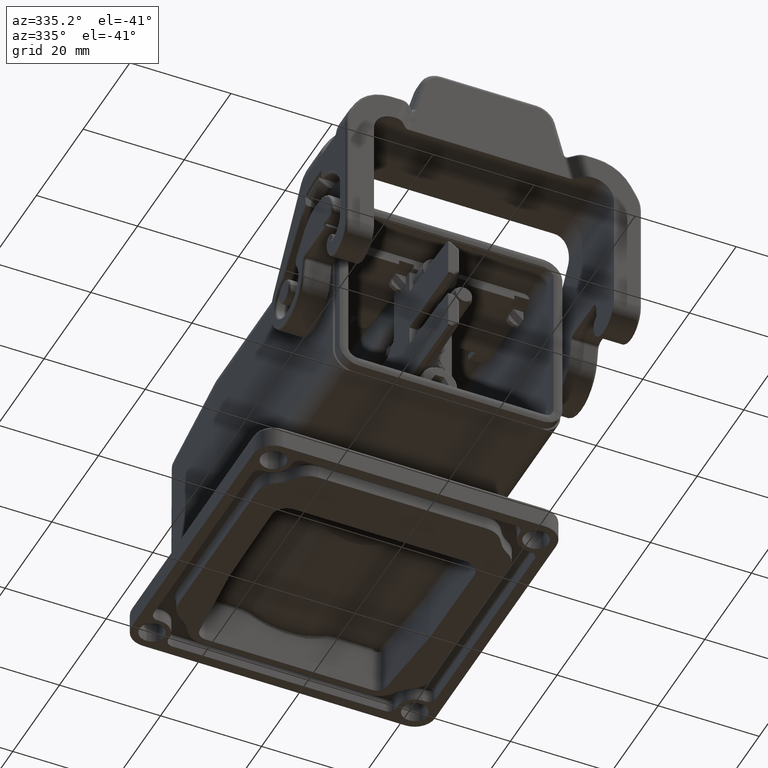
[diagram: clean part render]
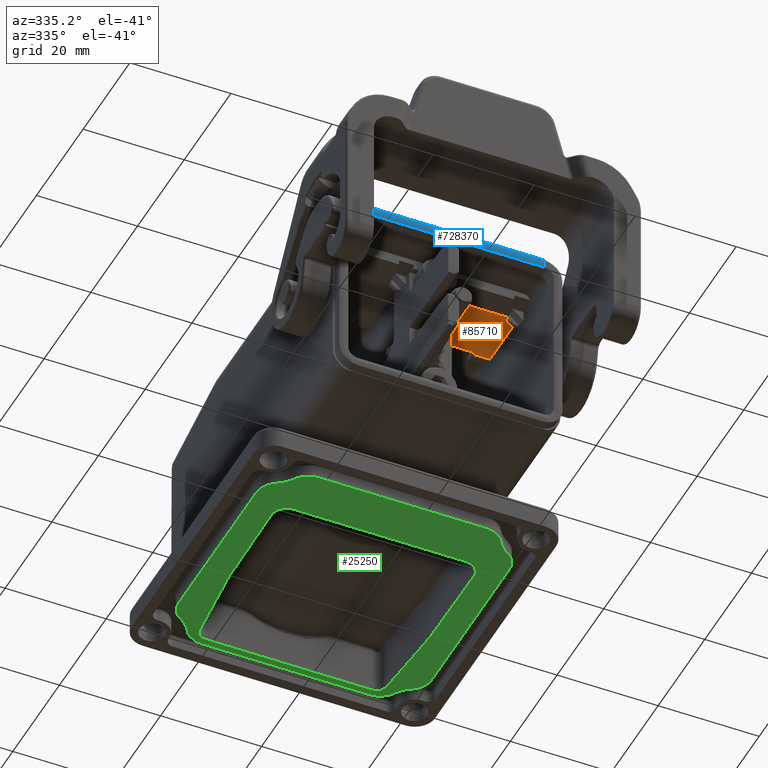
[diagram: same view with three faces highlighted in distinct colors, each labeled with its STEP entity id]
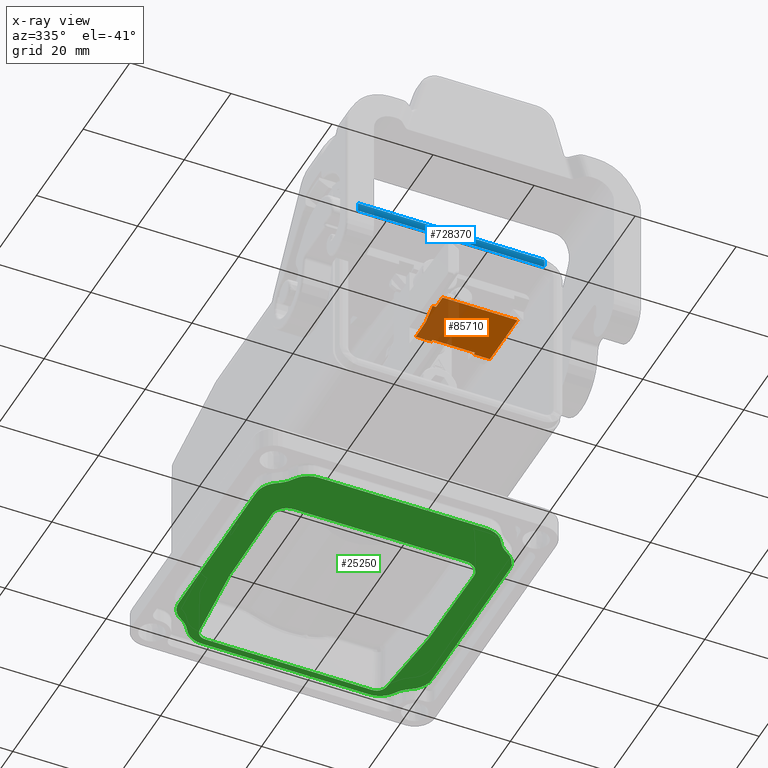
[diagram: x-ray of the same camera — body ghosted, the three highlighted faces saturated]
A machine part, auxiliary view with three faces highlighted in distinct colors.
The next image is the same camera in x-ray (body ghosted, the three faces saturated) — at least one of them is partly hidden behind the body in this view.
Their STEP definitions:

[orange] entity #85710 — the highlighted planar face has unit normal (0, 0.0058, -1).
#81020=CARTESIAN_POINT('',(93.1316055413798,59.4642975413741,
101.46658071361));
#81030=VERTEX_POINT('',#81020);
#82290=CARTESIAN_POINT('',(93.1316055413772,60.1392975413746,
101.46658071361));
#82300=VERTEX_POINT('',#82290);
#82330=CARTESIAN_POINT('',(93.1316055413772,18.9013455413746,
101.46658071361));
#82340=DIRECTION('',(5.55111512312578E-17,-1.,3.08148791101951E-33));
#82350=VECTOR('',#82340,1.);
#82360=LINE('',#82330,#82350);
#82370=EDGE_CURVE('',#82300,#81030,#82360,.T.);
#84640=CARTESIAN_POINT('',(84.1315632336062,63.3892975413746,
101.518941375686));
#84650=VERTEX_POINT('',#84640);
#84680=CARTESIAN_POINT('',(57.5744225413772,63.3892975413746,
101.673446145991));
#84690=DIRECTION('',(0.99998307689159,5.55102118100275E-17,
-0.00581772553732686));
#84700=VECTOR('',#84690,1.);
#84710=LINE('',#84680,#84700);
#84720=CARTESIAN_POINT('',(84.6316055413772,63.3892975413746,
101.516032217551));
#84730=VERTEX_POINT('',#84720);
#84740=EDGE_CURVE('',#84650,#84730,#84710,.T.);
#84940=CARTESIAN_POINT('',(95.9816055413771,18.9013455413746,
101.44999991523));
#84950=DIRECTION('',(-0.00581772553732686,-3.22948642124505E-19,
-0.99998307689159));
#84960=DIRECTION('',(0.99998307689159,5.55102118100275E-17,
-0.00581772553732686));
#84970=AXIS2_PLACEMENT_3D('',#84940,#84950,#84960);
#84980=PLANE('',#84970);
#84990=CARTESIAN_POINT('',(57.5744225413772,65.4185279293042,
101.673446145991));
#85000=DIRECTION('',(-0.986251305539335,0.165152776404633,
0.0057378365084874));
#85010=VECTOR('',#85000,1.);
#85020=LINE('',#84990,#85010);
#85030=CARTESIAN_POINT('',(88.6316055413772,60.2178453335516,
101.492760921579));
#85040=VERTEX_POINT('',#85030);
#85050=EDGE_CURVE('',#81030,#85040,#85020,.T.);
#85060=ORIENTED_EDGE('',*,*,#85050,.T.);
#85070=ORIENTED_EDGE('',*,*,#82370,.T.);
#85080=CARTESIAN_POINT('',(57.5744225413772,60.1392975413746,
101.673446145991));
#85090=DIRECTION('',(0.99998307689159,5.55102118100275E-17,
-0.00581772553732686));
#85100=VECTOR('',#85090,1.);
#85110=LINE('',#85080,#85100);
#85120=CARTESIAN_POINT('',(95.9816055413771,60.1392975413746,
101.44999991523));
#85130=VERTEX_POINT('',#85120);
#85140=EDGE_CURVE('',#82300,#85130,#85110,.T.);
#85150=ORIENTED_EDGE('',*,*,#85140,.F.);
#85160=CARTESIAN_POINT('',(95.9816055413771,18.9013455413746,
101.44999991523));
#85170=DIRECTION('',(-5.55111512312578E-17,1.,-3.08148791101951E-33));
#85180=VECTOR('',#85170,1.);
#85190=LINE('',#85160,#85180);
#85200=CARTESIAN_POINT('',(95.9816055413771,74.9642975413746,
101.44999991523));
#85210=VERTEX_POINT('',#85200);
#85220=EDGE_CURVE('',#85130,#85210,#85190,.T.);
#85230=ORIENTED_EDGE('',*,*,#85220,.F.);
#85240=CARTESIAN_POINT('',(57.5744225413772,74.9642975413746,
101.673446145991));
#85250=DIRECTION('',(0.99998307689159,5.55102118100275E-17,
-0.00581772553732686));
#85260=VECTOR('',#85250,1.);
#85270=LINE('',#85240,#85260);
#85280=CARTESIAN_POINT('',(84.1315632336062,74.9642975413746,
101.518941375686));
#85290=VERTEX_POINT('',#85280);
#85300=EDGE_CURVE('',#85290,#85210,#85270,.T.);
#85310=ORIENTED_EDGE('',*,*,#85300,.T.);
#85320=CARTESIAN_POINT('',(84.1315632336061,73.3767975413746,
101.518941375686));
#85330=DIRECTION('',(5.55111512312578E-17,-1.,3.08148791101951E-33));
#85340=VECTOR('',#85330,1.);
#85350=LINE('',#85320,#85340);
#85360=CARTESIAN_POINT('',(84.1315632336062,71.7892975413746,
101.518941375686));
#85370=VERTEX_POINT('',#85360);
#85380=EDGE_CURVE('',#85290,#85370,#85350,.T.);
#85390=ORIENTED_EDGE('',*,*,#85380,.F.);
#85400=CARTESIAN_POINT('',(57.5744225413772,71.7892975413746,
101.673446145991));
#85410=DIRECTION('',(0.99998307689159,5.55102118100275E-17,
-0.00581772553732686));
#85420=VECTOR('',#85410,1.);
#85430=LINE('',#85400,#85420);
#85440=CARTESIAN_POINT('',(84.6316055413772,71.7892975413746,
101.516032217551));
#85450=VERTEX_POINT('',#85440);
#85460=EDGE_CURVE('',#85370,#85450,#85430,.T.);
#85470=ORIENTED_EDGE('',*,*,#85460,.F.);
#85480=CARTESIAN_POINT('',(84.6316055413772,18.9013455413746,
101.516032217551));
#85490=DIRECTION('',(5.55111512312578E-17,-1.,3.08148791101951E-33));
#85500=VECTOR('',#85490,1.);
#85510=LINE('',#85480,#85500);
#85520=EDGE_CURVE('',#85450,#84730,#85510,.T.);
#85530=ORIENTED_EDGE('',*,*,#85520,.F.);
#85540=ORIENTED_EDGE('',*,*,#84740,.T.);
#85550=CARTESIAN_POINT('',(84.1315632336062,18.9013455413746,
101.518941375686));
#85560=DIRECTION('',(-5.55111512312578E-17,1.,-3.08148791101951E-33));
#85570=VECTOR('',#85560,1.);
#85580=LINE('',#85550,#85570);
#85590=CARTESIAN_POINT('',(84.1315632336062,60.2963938642134,
101.518941375686));
#85600=VERTEX_POINT('',#85590);
#85610=EDGE_CURVE('',#85600,#84650,#85580,.T.);
#85620=ORIENTED_EDGE('',*,*,#85610,.T.);
#85630=CARTESIAN_POINT('',(57.5744225413772,60.7599504793041,
101.673446145991));
#85640=DIRECTION('',(-0.999830779779087,0.0174521111782743,
0.00581683949953167));
#85650=VECTOR('',#85640,1.);
#85660=LINE('',#85630,#85650);
#85670=EDGE_CURVE('',#85040,#85600,#85660,.T.);
#85680=ORIENTED_EDGE('',*,*,#85670,.T.);
#85690=EDGE_LOOP('',(#85680,#85620,#85540,#85530,#85470,#85390,#85310,
#85230,#85150,#85070,#85060));
#85700=FACE_OUTER_BOUND('',#85690,.T.);
#85710=ADVANCED_FACE('',(#85700),#84980,.T.);

[blue] entity #728370 — the highlighted cylindrical surface (edge-blend (fillet) strip) has radius 3 mm, axis along (-1, -0, -0).
#719260=CARTESIAN_POINT('',(108.603494381111,37.519315490939,
103.932673941236));
#719270=VERTEX_POINT('',#719260);
#725630=CARTESIAN_POINT('',(106.731605541377,37.7549790595669,
101.799535940432));
#725640=DIRECTION('',(-0.999695459881888,-0.0174497491606827,
0.0174497491606826));
#725650=DIRECTION('',(0.0174524064372834,0.,0.999847695156391));
#725660=AXIS2_PLACEMENT_3D('',#725630,#725640,#725650);
#725670=CYLINDRICAL_SURFACE('',#725660,3.89987);
#727340=CARTESIAN_POINT('',(105.731605541377,55.9545149999983,104.8));
#727350=DIRECTION('',(-6.16297582203915E-33,-1.,-3.42113882891801E-49));
#727360=DIRECTION('',(5.55111512312578E-17,0.,-1.));
#727370=AXIS2_PLACEMENT_3D('',#727340,#727350,#727360);
#727380=CYLINDRICAL_SURFACE('',#727370,3.);
#727390=CARTESIAN_POINT('',(108.603494381111,55.9545149999983,
103.932673941236));
#727400=DIRECTION('',(-6.16297582203915E-33,-1.,-3.42113882891801E-49));
#727410=VECTOR('',#727400,1.);
#727420=LINE('',#727390,#727410);
#727430=CARTESIAN_POINT('',(108.603494381111,74.3874783204371,
103.932673941236));
#727440=VERTEX_POINT('',#727430);
#727450=CARTESIAN_POINT('',(108.603494381111,37.5215516795595,
103.932673941236));
#727460=VERTEX_POINT('',#727450);
#727470=EDGE_CURVE('',#727440,#727460,#727420,.T.);
#727480=ORIENTED_EDGE('',*,*,#727470,.F.);
#727490=CARTESIAN_POINT('',(108.603494381111,37.519315490939,
103.932673941236));
#727500=DIRECTION('',(1.1943240077442E-50,1.,-1.07575143124729E-34));
#727510=VECTOR('',#727500,1.);
#727520=LINE('',#727490,#727510);
#727530=EDGE_CURVE('',#719270,#727460,#727520,.T.);
#727540=ORIENTED_EDGE('',*,*,#727530,.T.);
#727550=CARTESIAN_POINT('',(105.731605541377,37.519315490939,104.8));
#727560=DIRECTION('',(6.20148791431082E-15,-1.,1.39417152399687E-15));
#727570=DIRECTION('',(-4.44089209850018E-16,-1.39417152399688E-15,-1.));
#727580=AXIS2_PLACEMENT_3D('',#727550,#727560,#727570);
#727590=CIRCLE('',#727580,3.);
#727600=CARTESIAN_POINT('',(108.606260140404,37.519315490939,
105.658114757067));
#727610=VERTEX_POINT('',#727600);
#727620=EDGE_CURVE('',#719270,#727610,#727590,.T.);
#727630=ORIENTED_EDGE('',*,*,#727620,.F.);
#727640=CARTESIAN_POINT('',(105.731605541377,37.519315490939,104.8));
#727650=DIRECTION('',(6.20148791431082E-15,-1.,1.39417152399687E-15));
#727660=DIRECTION('',(-4.44089209850018E-16,-1.39417152399688E-15,-1.));
#727670=AXIS2_PLACEMENT_3D('',#727640,#727650,#727660);
#727680=CYLINDRICAL_SURFACE('',#727670,3.);
#727690=CARTESIAN_POINT('',(108.606260140404,37.519315490939,
105.658114757067));
#727700=CARTESIAN_POINT('',(108.605803151,37.5414856977012,
105.65964565568));
#727710=CARTESIAN_POINT('',(108.605401427021,37.5636853441523,
105.660987021479));
#727720=CARTESIAN_POINT('',(108.605056153393,37.5859097557589,
105.66213779659));
#727730=CARTESIAN_POINT('',(108.604710879863,37.6081341610314,
105.663288571373));
#727740=CARTESIAN_POINT('',(108.604422057486,37.6303833243634,
105.664248754259));
#727750=CARTESIAN_POINT('',(108.604190582469,37.6526523817938,
105.66501744589));
#727760=CARTESIAN_POINT('',(108.603959107509,37.6749214337916,
105.665786137334));
#727770=CARTESIAN_POINT('',(108.603784980544,37.6972103725422,
105.66636333656));
#727780=CARTESIAN_POINT('',(108.603668798819,37.7195141737099,
105.666748317135));
#727790=CARTESIAN_POINT('',(108.603552617117,37.7418179703143,
105.667133297631));
#727800=CARTESIAN_POINT('',(108.603494381112,37.7641366218049,
105.667326058764));
#727810=CARTESIAN_POINT('',(108.603494381112,37.7864649721438,
105.667326058764));
#727820=B_SPLINE_CURVE_WITH_KNOTS('',3,(#727690,#727700,#727710,#727720,
#727730,#727740,#727750,#727760,#727770,#727780,#727790,#727800,#727810)
,.UNSPECIFIED.,.F.,.F.,(4,3,3,3,4),(0.,0.0667274294355022,
0.133538655234725,0.200425786045437,0.267380211048013),.UNSPECIFIED.);
#727830=SURFACE_CURVE('',#727820,(#725670,#727680),.CURVE_3D.);
#727840=CARTESIAN_POINT('',(108.603494381111,37.7864649721438,
105.667326058764));
#727850=VERTEX_POINT('',#727840);
#727860=EDGE_CURVE('',#727610,#727850,#727830,.T.);
#727870=ORIENTED_EDGE('',*,*,#727860,.F.);
#727880=CARTESIAN_POINT('',(108.603494381111,55.9545149999983,
105.667326058764));
#727890=DIRECTION('',(-6.16297582203915E-33,-1.,-3.42113882891801E-49));
#727900=VECTOR('',#727890,1.);
#727910=LINE('',#727880,#727900);
#727920=CARTESIAN_POINT('',(108.603494381112,74.1225650278528,
105.667326058764));
#727930=VERTEX_POINT('',#727920);
#727940=EDGE_CURVE('',#727930,#727850,#727910,.T.);
#727950=ORIENTED_EDGE('',*,*,#727940,.T.);
#727960=CARTESIAN_POINT('',(106.731605541377,74.1540509404297,
101.799535940432));
#727970=DIRECTION('',(-0.999695459881888,0.0174497491606827,
0.0174497491606826));
#727980=DIRECTION('',(0.0174524064372834,0.,0.999847695156391));
#727990=AXIS2_PLACEMENT_3D('',#727960,#727970,#727980);
#728000=CYLINDRICAL_SURFACE('',#727990,3.89987);
#728010=CARTESIAN_POINT('',(108.603494381112,74.1225650278528,
105.667326058764));
#728020=CARTESIAN_POINT('',(108.603494381112,74.1448933781917,
105.667326058764));
#728030=CARTESIAN_POINT('',(108.603552617117,74.1672120296823,
105.667133297631));
#728040=CARTESIAN_POINT('',(108.603668798819,74.1895158262867,
105.666748317135));
#728050=CARTESIAN_POINT('',(108.603784980544,74.2118196274544,
105.66636333656));
#728060=CARTESIAN_POINT('',(108.603959107509,74.234108566205,
105.665786137334));
#728070=CARTESIAN_POINT('',(108.604190582469,74.2563776182028,
105.66501744589));
#728080=CARTESIAN_POINT('',(108.604422057486,74.2786466756331,
105.664248754259));
#728090=CARTESIAN_POINT('',(108.604710879863,74.3008958389653,
105.663288571373));
#728100=CARTESIAN_POINT('',(108.605056153393,74.3231202442377,
105.66213779659));
#728110=CARTESIAN_POINT('',(108.605401427021,74.3453446558442,
105.660987021479));
#728120=CARTESIAN_POINT('',(108.605803151,74.3675443022954,
105.65964565568));
#728130=CARTESIAN_POINT('',(108.606260140404,74.3897145090576,
105.658114757067));
#728140=B_SPLINE_CURVE_WITH_KNOTS('',3,(#728010,#728020,#728030,#728040,
#728050,#728060,#728070,#728080,#728090,#728100,#728110,#728120,#728130)
,.UNSPECIFIED.,.F.,.F.,(4,3,3,3,4),(0.,0.0669544250025664,
0.133841555813208,0.200652781612341,0.267380211047788),.UNSPECIFIED.);
#728150=SURFACE_CURVE('',#728140,(#728000,#727380),.CURVE_3D.);
#728160=CARTESIAN_POINT('',(108.606260140404,74.3897145090576,
105.658114757067));
#728170=VERTEX_POINT('',#728160);
#728180=EDGE_CURVE('',#727930,#728170,#728150,.T.);
#728190=ORIENTED_EDGE('',*,*,#728180,.F.);
#728200=CARTESIAN_POINT('',(105.731605541377,74.3897145090576,104.8));
#728210=DIRECTION('',(-6.16297582203915E-33,-1.,-3.42113882891801E-49));
#728220=DIRECTION('',(5.55111512312578E-17,0.,-1.));
#728230=AXIS2_PLACEMENT_3D('',#728200,#728210,#728220);
#728240=CIRCLE('',#728230,3.);
#728250=CARTESIAN_POINT('',(108.603494381111,74.3897145090576,
103.932673941236));
#728260=VERTEX_POINT('',#728250);
#728270=EDGE_CURVE('',#728260,#728170,#728240,.T.);
#728280=ORIENTED_EDGE('',*,*,#728270,.T.);
#728290=CARTESIAN_POINT('',(108.603494381111,55.9545149999983,
103.932673941236));
#728300=DIRECTION('',(1.1943240077442E-50,1.,-1.07575143124729E-34));
#728310=VECTOR('',#728300,1.);
#728320=LINE('',#728290,#728310);
#728330=EDGE_CURVE('',#727440,#728260,#728320,.T.);
#728340=ORIENTED_EDGE('',*,*,#728330,.T.);
#728350=EDGE_LOOP('',(#728340,#728280,#728190,#727950,#727870,#727630,
#727540,#727480));
#728360=FACE_OUTER_BOUND('',#728350,.T.);
#728370=ADVANCED_FACE('',(#728360),#727380,.T.);

[green] entity #25250 — the highlighted planar face has unit normal (0, 0, -1).
#8580=CARTESIAN_POINT('',(39.1316058655111,39.4546748722559,
57.4000000000002));
#8590=VERTEX_POINT('',#8580);
#8620=CARTESIAN_POINT('',(41.1319105215989,39.4546215684075,
57.4000000000002));
#8630=DIRECTION('',(5.55111512312578E-17,3.08148791101958E-33,-1.));
#8640=DIRECTION('',(0.996194698091743,-0.0871557427476844,
5.5299914541548E-17));
#8650=AXIS2_PLACEMENT_3D('',#8620,#8630,#8640);
#8660=ELLIPSE('',#8650,2.00030698782768,2.);
#8670=CARTESIAN_POINT('',(40.9575990361036,37.462232172224,
57.4000000000002));
#8680=VERTEX_POINT('',#8670);
#8690=EDGE_CURVE('',#8680,#8590,#8660,.T.);
#9270=CARTESIAN_POINT('',(42.3207483783766,33.1422694659826,
57.4000000000002));
#9280=VERTEX_POINT('',#9270);
#9310=CARTESIAN_POINT('',(36.8316055413773,29.9545149999988,
57.4000000000002));
#9320=DIRECTION('',(-5.57146680664484E-17,-0.,1.));
#9330=DIRECTION('',(-1.,0.,-5.57146680664484E-17));
#9340=AXIS2_PLACEMENT_3D('',#9310,#9320,#9330);
#9350=CIRCLE('',#9340,6.34763480521535);
#9360=CARTESIAN_POINT('',(40.0193600073611,35.4436578369981,
57.4000000000002));
#9370=VERTEX_POINT('',#9360);
#9380=EDGE_CURVE('',#9280,#9370,#9350,.T.);
#11400=CARTESIAN_POINT('',(85.6438510753934,35.4436578369982,
57.4000000000002));
#11410=VERTEX_POINT('',#11400);
#11440=CARTESIAN_POINT('',(88.8316055413773,29.9545149999989,
57.4000000000002));
#11450=DIRECTION('',(-5.81370449389026E-17,-0.,1.));
#11460=DIRECTION('',(-1.,0.,-5.81370449389026E-17));
#11470=AXIS2_PLACEMENT_3D('',#11440,#11450,#11460);
#11480=CIRCLE('',#11470,6.34763480521536);
#11490=CARTESIAN_POINT('',(83.3424627043779,33.1422694659827,
57.4000000000002));
#11500=VERTEX_POINT('',#11490);
#11510=EDGE_CURVE('',#11410,#11500,#11480,.T.);
#23220=CARTESIAN_POINT('',(38.5642755605494,55.9545149999988,
57.4000000000002));
#23230=DIRECTION('',(5.55111512312578E-17,3.08148791101958E-33,-1.));
#23240=DIRECTION('',(-5.55111512312578E-17,1.,-0.));
#23250=AXIS2_PLACEMENT_3D('',#23220,#23230,#23240);
#23260=PLANE('',#23250);
#23270=CARTESIAN_POINT('',(75.1311492714559,38.9304022391511,
57.4000000000002));
#23280=DIRECTION('',(5.55111512312578E-17,3.08148791101958E-33,-1.));
#23290=DIRECTION('',(0.999961923064171,-0.00872653549837532,
5.55090375367146E-17));
#23300=AXIS2_PLACEMENT_3D('',#23270,#23280,#23290);
#23310=ELLIPSE('',#23300,3.00045701893217,3.);
#23320=CARTESIAN_POINT('',(78.1316062555876,38.9303942636783,
57.4000000000002));
#23330=VERTEX_POINT('',#23320);
#23340=CARTESIAN_POINT('',(75.1049696649609,35.9305164699585,
57.4000000000002));
#23350=VERTEX_POINT('',#23340);
#23360=EDGE_CURVE('',#23330,#23350,#23310,.T.);
#23370=ORIENTED_EDGE('',*,*,#23360,.F.);
#23380=CARTESIAN_POINT('',(33.8311485820618,36.2907076497684,
57.4000000000002));
#23390=DIRECTION('',(0.999961923064171,-0.00872653549837388,
5.55111512312578E-17));
#23400=VECTOR('',#23390,1.);
#23410=LINE('',#23380,#23400);
#23420=CARTESIAN_POINT('',(56.6214891476718,36.091819360746,
57.4000000000002));
#23430=VERTEX_POINT('',#23420);
#23440=EDGE_CURVE('',#23430,#23350,#23410,.T.);
#23450=ORIENTED_EDGE('',*,*,#23440,.T.);
#23460=CARTESIAN_POINT('',(33.8311485820618,38.0857157981319,
57.4000000000002));
#23470=DIRECTION('',(0.996194698091746,-0.0871557427476581,
5.55111512312578E-17));
#23480=VECTOR('',#23470,1.);
#23490=LINE('',#23460,#23480);
#23500=EDGE_CURVE('',#8680,#23430,#23490,.T.);
#23510=ORIENTED_EDGE('',*,*,#23500,.T.);
#23520=ORIENTED_EDGE('',*,*,#8690,.F.);
#23530=CARTESIAN_POINT('',(39.1316058655111,55.9545149999987,
57.4000000000002));
#23540=DIRECTION('',(-5.55111512312578E-17,1.,-0.));
#23550=VECTOR('',#23540,1.);
#23560=LINE('',#23530,#23550);
#23570=CARTESIAN_POINT('',(39.1316058655111,72.4543551277407,
57.4000000000002));
#23580=VERTEX_POINT('',#23570);
#23590=EDGE_CURVE('',#8590,#23580,#23560,.T.);
#23600=ORIENTED_EDGE('',*,*,#23590,.F.);
#23610=CARTESIAN_POINT('',(41.1319105215989,72.4544084315891,
57.4000000000002));
#23620=DIRECTION('',(5.55111512312578E-17,3.08148791101958E-33,-1.));
#23630=DIRECTION('',(0.996194698091743,0.0871557427476844,
5.5299914541548E-17));
#23640=AXIS2_PLACEMENT_3D('',#23610,#23620,#23630);
#23650=ELLIPSE('',#23640,2.00030698782768,2.);
#23660=CARTESIAN_POINT('',(40.9575990361036,74.4467978277726,
57.4000000000002));
#23670=VERTEX_POINT('',#23660);
#23680=EDGE_CURVE('',#23580,#23670,#23650,.T.);
#23690=ORIENTED_EDGE('',*,*,#23680,.F.);
#23700=CARTESIAN_POINT('',(33.8311485820618,73.8233142018647,
57.4000000000002));
#23710=DIRECTION('',(0.996194698091746,0.0871557427476582,
5.55111512312578E-17));
#23720=VECTOR('',#23710,1.);
#23730=LINE('',#23700,#23720);
#23740=CARTESIAN_POINT('',(56.6214891476718,75.8172106392506,
57.4000000000002));
#23750=VERTEX_POINT('',#23740);
#23760=EDGE_CURVE('',#23670,#23750,#23730,.T.);
#23770=ORIENTED_EDGE('',*,*,#23760,.F.);
#23780=CARTESIAN_POINT('',(33.8311485820618,75.6183223502282,
57.4000000000002));
#23790=DIRECTION('',(0.999961923064171,0.00872653549837399,
5.55111512312578E-17));
#23800=VECTOR('',#23790,1.);
#23810=LINE('',#23780,#23800);
#23820=CARTESIAN_POINT('',(75.1049696649608,75.978513530038,
57.4000000000002));
#23830=VERTEX_POINT('',#23820);
#23840=EDGE_CURVE('',#23750,#23830,#23810,.T.);
#23850=ORIENTED_EDGE('',*,*,#23840,.F.);
#23860=CARTESIAN_POINT('',(75.1311492714559,72.9786277608455,
57.4000000000002));
#23870=DIRECTION('',(5.55111512312578E-17,3.08148791101958E-33,-1.));
#23880=DIRECTION('',(0.999961923064171,0.00872653549837552,
5.55090375367146E-17));
#23890=AXIS2_PLACEMENT_3D('',#23860,#23870,#23880);
#23900=ELLIPSE('',#23890,3.00045701893217,3.);
#23910=CARTESIAN_POINT('',(78.1316062555876,72.9786357363183,
57.4000000000002));
#23920=VERTEX_POINT('',#23910);
#23930=EDGE_CURVE('',#23830,#23920,#23900,.T.);
#23940=ORIENTED_EDGE('',*,*,#23930,.F.);
#23950=CARTESIAN_POINT('',(78.1316062555876,55.9545149999987,
57.4000000000002));
#23960=DIRECTION('',(-5.55111512312578E-17,1.,-0.));
#23970=VECTOR('',#23960,1.);
#23980=LINE('',#23950,#23970);
#23990=EDGE_CURVE('',#23330,#23920,#23980,.T.);
#24000=ORIENTED_EDGE('',*,*,#23990,.T.);
#24010=EDGE_LOOP('',(#24000,#23940,#23850,#23770,#23690,#23600,#23520,
#23510,#23450,#23370));
#24020=FACE_BOUND('',#24010,.T.);
#24030=CARTESIAN_POINT('',(83.3839707361619,72.573978986724,
57.4000000000002));
#24040=DIRECTION('',(-5.81370449389026E-17,-0.,1.));
#24050=DIRECTION('',(-1.,0.,-5.81370449389026E-17));
#24060=AXIS2_PLACEMENT_3D('',#24030,#24040,#24050);
#24070=CIRCLE('',#24060,4.5);
#24080=CARTESIAN_POINT('',(87.8839707361619,72.573978986724,
57.4000000000002));
#24090=VERTEX_POINT('',#24080);
#24100=CARTESIAN_POINT('',(85.6438510753934,76.4653721629984,
57.4000000000002));
#24110=VERTEX_POINT('',#24100);
#24120=EDGE_CURVE('',#24090,#24110,#24070,.T.);
#24130=ORIENTED_EDGE('',*,*,#24120,.F.);
#24140=CARTESIAN_POINT('',(88.8316055413773,81.9545149999978,
57.4000000000002));
#24150=DIRECTION('',(5.81370449389026E-17,0.,-1.));
#24160=DIRECTION('',(1.,2.22044604925031E-16,5.81370449389026E-17));
#24170=AXIS2_PLACEMENT_3D('',#24140,#24150,#24160);
#24180=CIRCLE('',#24170,6.34763480521536);
#24190=CARTESIAN_POINT('',(83.3424627043779,78.7667605340139,
57.4000000000002));
#24200=VERTEX_POINT('',#24190);
#24210=EDGE_CURVE('',#24110,#24200,#24180,.T.);
#24220=ORIENTED_EDGE('',*,*,#24210,.F.);
#24230=CARTESIAN_POINT('',(79.4510695281034,76.5068801947825,
57.4000000000002));
#24240=DIRECTION('',(-5.81370449389026E-17,-0.,1.));
#24250=DIRECTION('',(-1.,0.,-5.81370449389026E-17));
#24260=AXIS2_PLACEMENT_3D('',#24230,#24240,#24250);
#24270=CIRCLE('',#24260,4.5);
#24280=CARTESIAN_POINT('',(79.4510695281034,81.0068801947825,
57.4000000000002));
#24290=VERTEX_POINT('',#24280);
#24300=EDGE_CURVE('',#24200,#24290,#24270,.T.);
#24310=ORIENTED_EDGE('',*,*,#24300,.F.);
#24320=CARTESIAN_POINT('',(33.8311485820618,81.0068801947825,
57.4000000000002));
#24330=DIRECTION('',(1.,-4.73405375232164E-16,5.55111512312578E-17));
#24340=VECTOR('',#24330,1.);
#24350=LINE('',#24320,#24340);
#24360=CARTESIAN_POINT('',(46.212141554651,81.0068801947825,
57.4000000000002));
#24370=VERTEX_POINT('',#24360);
#24380=EDGE_CURVE('',#24370,#24290,#24350,.T.);
#24390=ORIENTED_EDGE('',*,*,#24380,.T.);
#24400=CARTESIAN_POINT('',(46.212141554651,76.5068801947825,
57.4000000000002));
#24410=DIRECTION('',(-5.57146680664484E-17,-0.,1.));
#24420=DIRECTION('',(-1.,0.,-5.57146680664484E-17));
#24430=AXIS2_PLACEMENT_3D('',#24400,#24410,#24420);
#24440=CIRCLE('',#24430,4.5);
#24450=CARTESIAN_POINT('',(42.3207483783766,78.766760534014,
57.4000000000002));
#24460=VERTEX_POINT('',#24450);
#24470=EDGE_CURVE('',#24370,#24460,#24440,.T.);
#24480=ORIENTED_EDGE('',*,*,#24470,.F.);
#24490=CARTESIAN_POINT('',(36.8316055413773,81.9545149999979,
57.4000000000002));
#24500=DIRECTION('',(5.57146680664484E-17,0.,-1.));
#24510=DIRECTION('',(1.,2.22044604925031E-16,5.57146680664484E-17));
#24520=AXIS2_PLACEMENT_3D('',#24490,#24500,#24510);
#24530=CIRCLE('',#24520,6.34763480521535);
#24540=CARTESIAN_POINT('',(40.0193600073611,76.4653721629985,
57.4000000000002));
#24550=VERTEX_POINT('',#24540);
#24560=EDGE_CURVE('',#24460,#24550,#24530,.T.);
#24570=ORIENTED_EDGE('',*,*,#24560,.F.);
#24580=CARTESIAN_POINT('',(42.2792403465926,72.5739789867241,
57.4000000000002));
#24590=DIRECTION('',(-5.57146680664484E-17,-0.,1.));
#24600=DIRECTION('',(-1.,0.,-5.57146680664484E-17));
#24610=AXIS2_PLACEMENT_3D('',#24580,#24590,#24600);
#24620=CIRCLE('',#24610,4.5);
#24630=CARTESIAN_POINT('',(37.7792403465926,72.5739789867241,
57.4000000000002));
#24640=VERTEX_POINT('',#24630);
#24650=EDGE_CURVE('',#24550,#24640,#24620,.T.);
#24660=ORIENTED_EDGE('',*,*,#24650,.F.);
#24670=CARTESIAN_POINT('',(37.7792403465926,55.9545149999987,
57.4000000000002));
#24680=DIRECTION('',(4.9627492328411E-16,-1.,0.));
#24690=VECTOR('',#24680,1.);
#24700=LINE('',#24670,#24690);
#24710=CARTESIAN_POINT('',(37.7792403465926,39.3350510132725,
57.4000000000002));
#24720=VERTEX_POINT('',#24710);
#24730=EDGE_CURVE('',#24640,#24720,#24700,.T.);
#24740=ORIENTED_EDGE('',*,*,#24730,.F.);
#24750=CARTESIAN_POINT('',(42.2792403465926,39.3350510132725,
57.4000000000002));
#24760=DIRECTION('',(-5.57146680664484E-17,-0.,1.));
#24770=DIRECTION('',(-1.,0.,-5.57146680664484E-17));
#24780=AXIS2_PLACEMENT_3D('',#24750,#24760,#24770);
#24790=CIRCLE('',#24780,4.5);
#24800=EDGE_CURVE('',#24720,#9370,#24790,.T.);
#24810=ORIENTED_EDGE('',*,*,#24800,.F.);
#24820=ORIENTED_EDGE('',*,*,#9380,.T.);
#24830=CARTESIAN_POINT('',(46.212141554651,35.4021498052141,
57.4000000000002));
#24840=DIRECTION('',(-5.57146680664484E-17,-0.,1.));
#24850=DIRECTION('',(-1.,0.,-5.57146680664484E-17));
#24860=AXIS2_PLACEMENT_3D('',#24830,#24840,#24850);
#24870=CIRCLE('',#24860,4.5);
#24880=CARTESIAN_POINT('',(46.212141554651,30.9021498052141,
57.4000000000002));
#24890=VERTEX_POINT('',#24880);
#24900=EDGE_CURVE('',#9280,#24890,#24870,.T.);
#24910=ORIENTED_EDGE('',*,*,#24900,.F.);
#24920=CARTESIAN_POINT('',(33.8311485820618,30.9021498052141,
57.4000000000002));
#24930=DIRECTION('',(1.,5.8442767769468E-16,5.55111512312578E-17));
#24940=VECTOR('',#24930,1.);
#24950=LINE('',#24920,#24940);
#24960=CARTESIAN_POINT('',(79.4510695281034,30.9021498052141,
57.4000000000002));
#24970=VERTEX_POINT('',#24960);
#24980=EDGE_CURVE('',#24890,#24970,#24950,.T.);
#24990=ORIENTED_EDGE('',*,*,#24980,.F.);
#25000=CARTESIAN_POINT('',(79.4510695281034,35.4021498052141,
57.4000000000002));
#25010=DIRECTION('',(-5.81370449389026E-17,-0.,1.));
#25020=DIRECTION('',(-1.,0.,-5.81370449389026E-17));
#25030=AXIS2_PLACEMENT_3D('',#25000,#25010,#25020);
#25040=CIRCLE('',#25030,4.5);
#25050=EDGE_CURVE('',#24970,#11500,#25040,.T.);
#25060=ORIENTED_EDGE('',*,*,#25050,.F.);
#25070=ORIENTED_EDGE('',*,*,#11510,.T.);
#25080=CARTESIAN_POINT('',(83.3839707361619,39.3350510132726,
57.4000000000002));
#25090=DIRECTION('',(-5.81370449389026E-17,-0.,1.));
#25100=DIRECTION('',(-1.,0.,-5.81370449389026E-17));
#25110=AXIS2_PLACEMENT_3D('',#25080,#25090,#25100);
#25120=CIRCLE('',#25110,4.5);
#25130=CARTESIAN_POINT('',(87.8839707361619,39.3350510132726,
57.4000000000002));
#25140=VERTEX_POINT('',#25130);
#25150=EDGE_CURVE('',#11410,#25140,#25120,.T.);
#25160=ORIENTED_EDGE('',*,*,#25150,.F.);
#25170=CARTESIAN_POINT('',(87.8839707361619,55.9545149999987,
57.4000000000002));
#25180=DIRECTION('',(-2.31816660052399E-16,1.,-0.));
#25190=VECTOR('',#25180,1.);
#25200=LINE('',#25170,#25190);
#25210=EDGE_CURVE('',#25140,#24090,#25200,.T.);
#25220=ORIENTED_EDGE('',*,*,#25210,.F.);
#25230=EDGE_LOOP('',(#25220,#25160,#25070,#25060,#24990,#24910,#24820,
#24810,#24740,#24660,#24570,#24480,#24390,#24310,#24220,#24130));
#25240=FACE_OUTER_BOUND('',#25230,.T.);
#25250=ADVANCED_FACE('',(#24020,#25240),#23260,.T.);